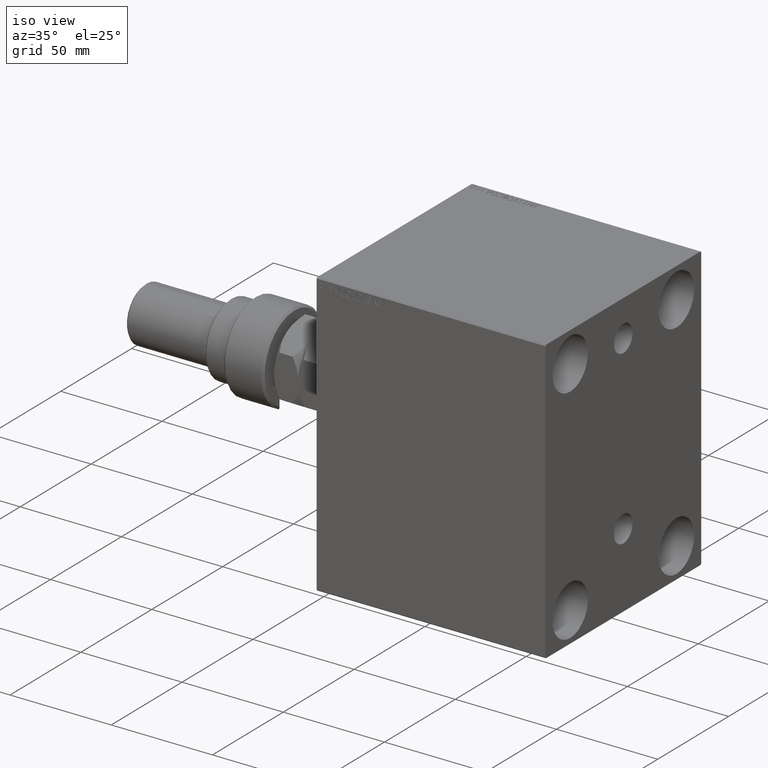
[diagram: clean part render]
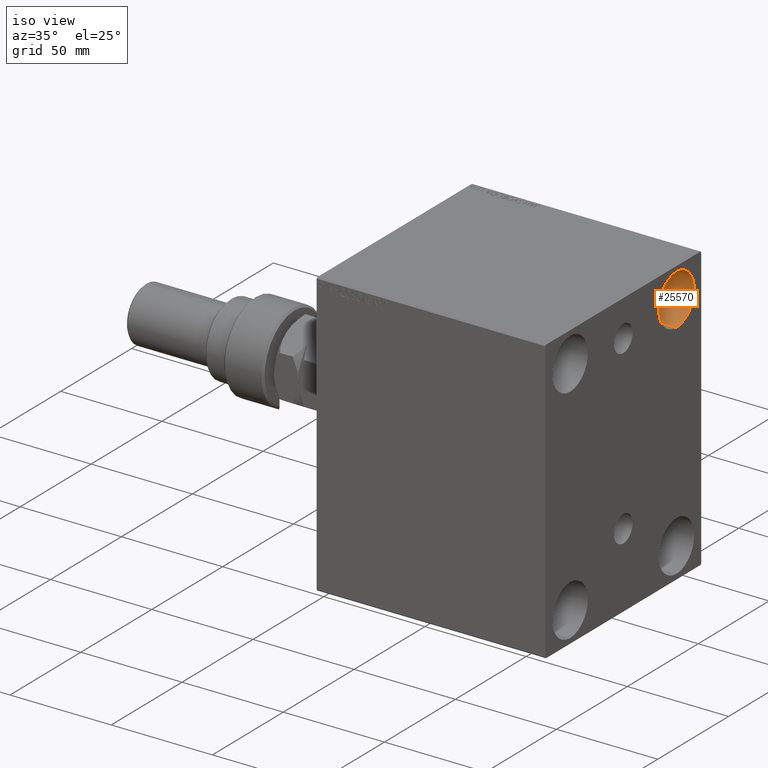
[diagram: same view with one face highlighted and labeled with its STEP entity id]
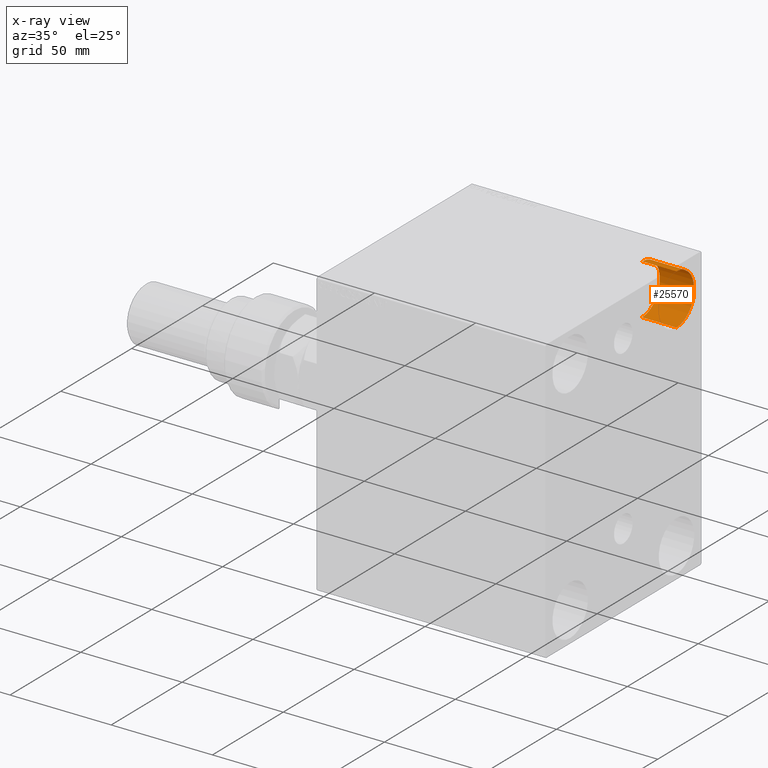
[diagram: x-ray of the same camera — body ghosted, the highlighted face saturated]
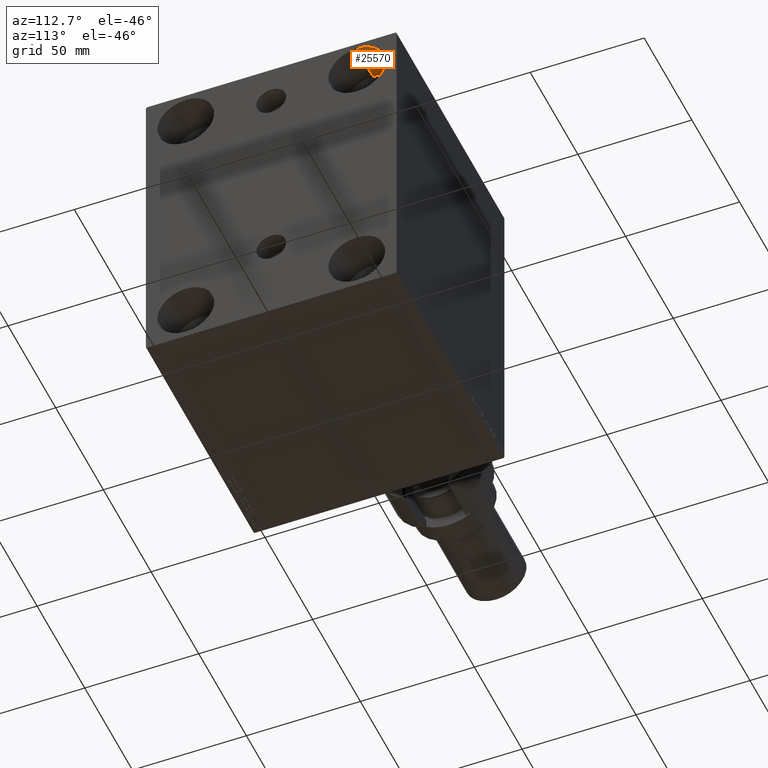
[diagram: same view with one face highlighted and labeled with its STEP entity id]
A machine part, iso view. The second image highlights one B-rep face of the part: STEP entity #25570.
The next image is the same camera in x-ray: the body ghosted, the highlighted face saturated — about 0% of this face is hidden behind the body in this view.
A second angle (auxiliary view) of the same face is appended — the face is thin or edge-on in the first view.
In plain terms, the highlighted cylindrical surface (edge-blend (fillet) strip) has radius 12.5 mm, axis along (1, 0, 0).
Its self-contained STEP definition (entity closure, byte-faithful):
#718 = AXIS2_PLACEMENT_3D ( 'NONE', #38336, #41882, #9526 ) ;
#1890 = CARTESIAN_POINT ( 'NONE',  ( 96.00000000000000000, 37.50000000000000711, 42.50000000000000711 ) ) ;
#2212 = VERTEX_POINT ( 'NONE', #13421 ) ;
#5251 = CIRCLE ( 'NONE', #718, 12.49999999999999645 ) ;
#5717 = CYLINDRICAL_SURFACE ( 'NONE', #39704, 12.49999999999999645 ) ;
#6999 = CARTESIAN_POINT ( 'NONE',  ( 96.00000000000000000, 37.50000000000000711, 55.00000000000000711 ) ) ;
#8436 = CARTESIAN_POINT ( 'NONE',  ( 113.0000000000000000, 37.50000000000000711, 67.50000000000000000 ) ) ;
#8527 = LINE ( 'NONE', #15149, #20818 ) ;
#8595 = CARTESIAN_POINT ( 'NONE',  ( 96.00000000000000000, 37.50000000000000711, 55.00000000000000711 ) ) ;
#9526 = DIRECTION ( 'NONE',  ( 0.000000000000000000, 0.000000000000000000, 1.000000000000000000 ) ) ;
#9581 = VERTEX_POINT ( 'NONE', #24265 ) ;
#10758 = VERTEX_POINT ( 'NONE', #8436 ) ;
#12499 = DIRECTION ( 'NONE',  ( 1.000000000000000000, -0.000000000000000000, -0.000000000000000000 ) ) ;
#13421 = CARTESIAN_POINT ( 'NONE',  ( 113.0000000000000000, 37.50000000000000711, 42.50000000000000711 ) ) ;
#15149 = CARTESIAN_POINT ( 'NONE',  ( 96.00000000000000000, 37.50000000000000711, 67.50000000000000000 ) ) ;
#15861 = CIRCLE ( 'NONE', #24173, 12.49999999999999645 ) ;
#18332 = EDGE_LOOP ( 'NONE', ( #39852, #19976, #37841, #42644 ) ) ;
#19976 = ORIENTED_EDGE ( 'NONE', *, *, #45575, .T. ) ;
#20818 = VECTOR ( 'NONE', #22718, 1000.000000000000000 ) ;
#21419 = DIRECTION ( 'NONE',  ( 0.000000000000000000, 0.000000000000000000, 1.000000000000000000 ) ) ;
#21619 = EDGE_CURVE ( 'NONE', #9581, #2212, #33760, .T. ) ;
#22718 = DIRECTION ( 'NONE',  ( 1.000000000000000000, -0.000000000000000000, -0.000000000000000000 ) ) ;
#24019 = VERTEX_POINT ( 'NONE', #25824 ) ;
#24173 = AXIS2_PLACEMENT_3D ( 'NONE', #6999, #28508, #21419 ) ;
#24265 = CARTESIAN_POINT ( 'NONE',  ( 96.00000000000000000, 37.50000000000000711, 42.50000000000000711 ) ) ;
#24594 = DIRECTION ( 'NONE',  ( 1.000000000000000000, -0.000000000000000000, -0.000000000000000000 ) ) ;
#25570 = ADVANCED_FACE ( 'NONE', ( #34755 ), #5717, .F. ) ;
#25824 = CARTESIAN_POINT ( 'NONE',  ( 96.00000000000000000, 37.50000000000000711, 67.50000000000000000 ) ) ;
#27159 = EDGE_CURVE ( 'NONE', #24019, #10758, #8527, .T. ) ;
#28508 = DIRECTION ( 'NONE',  ( -1.000000000000000000, -0.000000000000000000, -0.000000000000000000 ) ) ;
#29066 = VECTOR ( 'NONE', #12499, 1000.000000000000000 ) ;
#33760 = LINE ( 'NONE', #1890, #29066 ) ;
#34755 = FACE_OUTER_BOUND ( 'NONE', #18332, .T. ) ;
#37841 = ORIENTED_EDGE ( 'NONE', *, *, #21619, .T. ) ;
#38336 = CARTESIAN_POINT ( 'NONE',  ( 113.0000000000000000, 37.50000000000000711, 55.00000000000000711 ) ) ;
#38519 = DIRECTION ( 'NONE',  ( 0.000000000000000000, 0.000000000000000000, -1.000000000000000000 ) ) ;
#39704 = AXIS2_PLACEMENT_3D ( 'NONE', #8595, #24594, #38519 ) ;
#39852 = ORIENTED_EDGE ( 'NONE', *, *, #27159, .F. ) ;
#41882 = DIRECTION ( 'NONE',  ( -1.000000000000000000, -0.000000000000000000, -0.000000000000000000 ) ) ;
#42644 = ORIENTED_EDGE ( 'NONE', *, *, #43428, .F. ) ;
#43428 = EDGE_CURVE ( 'NONE', #10758, #2212, #5251, .T. ) ;
#45575 = EDGE_CURVE ( 'NONE', #24019, #9581, #15861, .T. ) ;